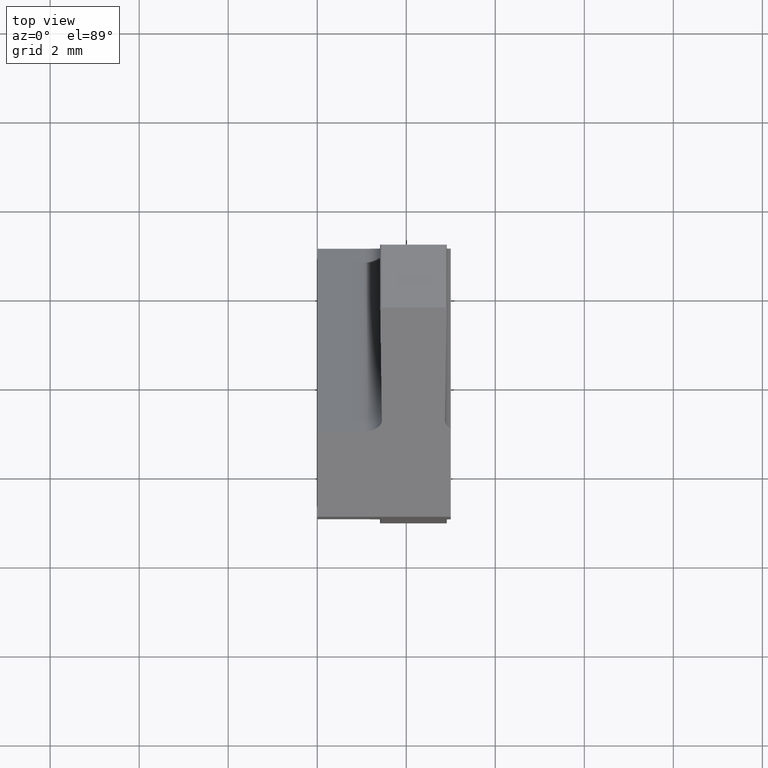
[diagram: clean part render]
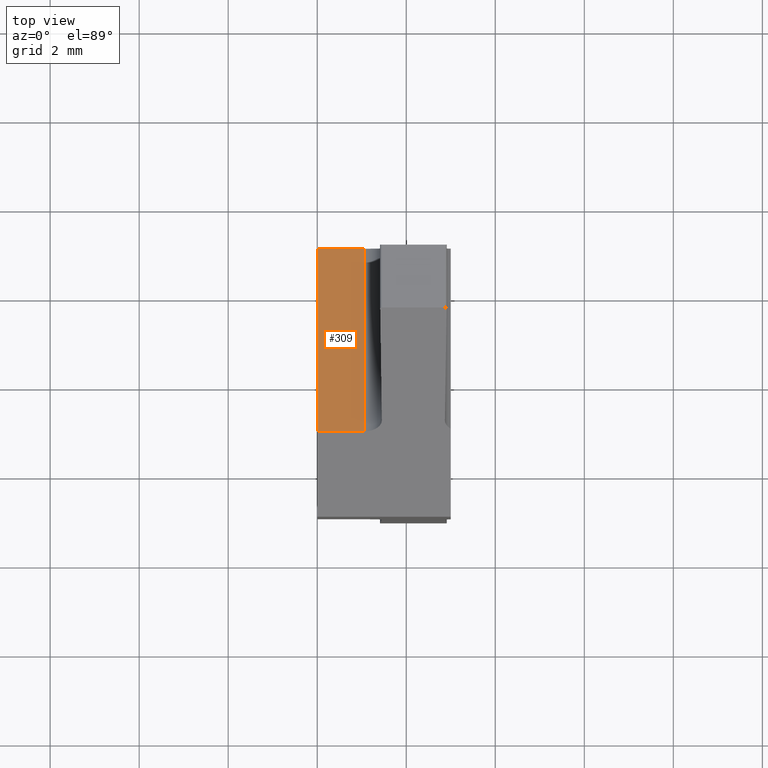
[diagram: same view with one face highlighted and labeled with its STEP entity id]
A machine part, top view. The second image highlights one B-rep face of the part: STEP entity #309.
In plain terms, the highlighted planar face has unit normal (0.0083, -0.309, -0.951).
Its self-contained STEP definition (entity closure, byte-faithful):
#9 = ORIENTED_EDGE ( 'NONE', *, *, #369, .F. ) ;
#14 = VECTOR ( 'NONE', #67, 1000.000000000000114 ) ;
#47 = ORIENTED_EDGE ( 'NONE', *, *, #778, .F. ) ;
#67 = DIRECTION ( 'NONE',  ( -0.9999623398293699950, -0.004977867723314927453, -0.007109131866878152899 ) ) ;
#171 = CARTESIAN_POINT ( 'NONE',  ( 2.971722154336991384, 2.999999999999830802, 2.294423796453480602 ) ) ;
#172 = LINE ( 'NONE', #783, #482 ) ;
#235 = CARTESIAN_POINT ( 'NONE',  ( 1.054768801550694191, -1.128243077449439635, 3.619042284683054778 ) ) ;
#271 = VECTOR ( 'NONE', #298, 1000.000000000000114 ) ;
#285 = LINE ( 'NONE', #589, #271 ) ;
#291 = VERTEX_POINT ( 'NONE', #400 ) ;
#298 = DIRECTION ( 'NONE',  ( -0.000000000000000000, 0.9510565162951555296, -0.3090169943749411230 ) ) ;
#309 = ADVANCED_FACE ( 'NONE', ( #729 ), #667, .F. ) ;
#365 = CARTESIAN_POINT ( 'NONE',  ( 0.000000000000000000, -1.133493774764394724, 3.611543511778694704 ) ) ;
#369 = EDGE_CURVE ( 'NONE', #516, #647, #285, .T. ) ;
#370 = DIRECTION ( 'NONE',  ( 0.008299458626915803133, -0.3090063514897841701, -0.9510237608627201134 ) ) ;
#383 = AXIS2_PLACEMENT_3D ( 'NONE', #727, #370, #660 ) ;
#396 = VERTEX_POINT ( 'NONE', #235 ) ;
#400 = CARTESIAN_POINT ( 'NONE',  ( 1.054768801550696189, 3.000000000000168754, 2.277694797982560360 ) ) ;
#413 = ORIENTED_EDGE ( 'NONE', *, *, #503, .F. ) ;
#447 = VECTOR ( 'NONE', #775, 999.9999999999998863 ) ;
#482 = VECTOR ( 'NONE', #592, 1000.000000000000227 ) ;
#503 = EDGE_CURVE ( 'NONE', #396, #516, #620, .T. ) ;
#516 = VERTEX_POINT ( 'NONE', #365 ) ;
#558 = EDGE_LOOP ( 'NONE', ( #413, #759, #47, #9 ) ) ;
#570 = CARTESIAN_POINT ( 'NONE',  ( 0.000000000000000000, 3.000000000000168754, 2.268489970101614794 ) ) ;
#589 = CARTESIAN_POINT ( 'NONE',  ( 6.758715055971984346E-18, -3.960821204758893543, 4.530197881483450040 ) ) ;
#591 = EDGE_CURVE ( 'NONE', #396, #291, #172, .T. ) ;
#592 = DIRECTION ( 'NONE',  ( -4.336808689942016773E-19, 0.9510565162951556406, -0.3090169943749410120 ) ) ;
#612 = CARTESIAN_POINT ( 'NONE',  ( 3.044514925925334570, -1.118338011413120947, 3.633188184999952774 ) ) ;
#620 = LINE ( 'NONE', #612, #14 ) ;
#647 = VERTEX_POINT ( 'NONE', #570 ) ;
#660 = DIRECTION ( 'NONE',  ( 0.000000000000000000, 0.9510565162951556406, -0.3090169943749410675 ) ) ;
#667 = PLANE ( 'NONE',  #383 ) ;
#727 = CARTESIAN_POINT ( 'NONE',  ( 6.758715055971984346E-18, -3.960821204758893543, 4.530197881483450040 ) ) ;
#729 = FACE_OUTER_BOUND ( 'NONE', #558, .T. ) ;
#759 = ORIENTED_EDGE ( 'NONE', *, *, #591, .T. ) ;
#769 = LINE ( 'NONE', #171, #447 ) ;
#775 = DIRECTION ( 'NONE',  ( 0.9999619230641714207, 4.230466510160072040E-19, 0.008726535498370404514 ) ) ;
#778 = EDGE_CURVE ( 'NONE', #647, #291, #769, .T. ) ;
#783 = CARTESIAN_POINT ( 'NONE',  ( 1.054768801550694857, 2.998973231275688267, 2.278028415364619974 ) ) ;